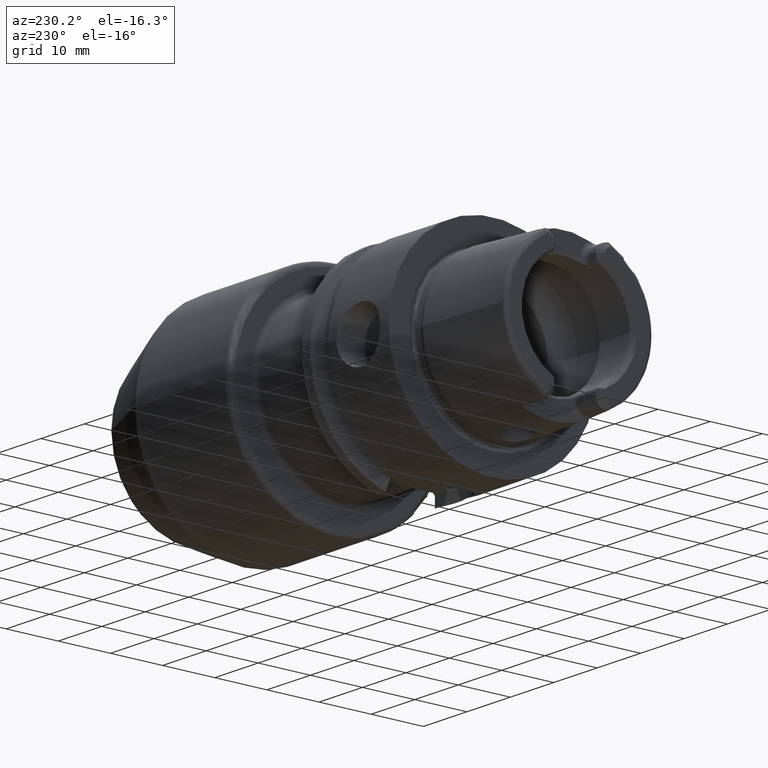
[diagram: clean part render]
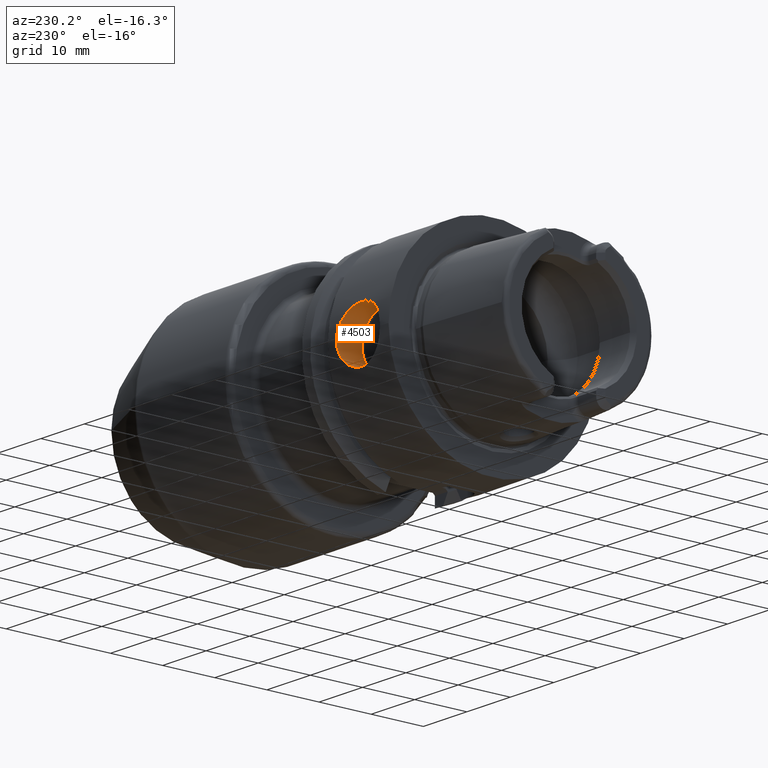
[diagram: same view with one face highlighted and labeled with its STEP entity id]
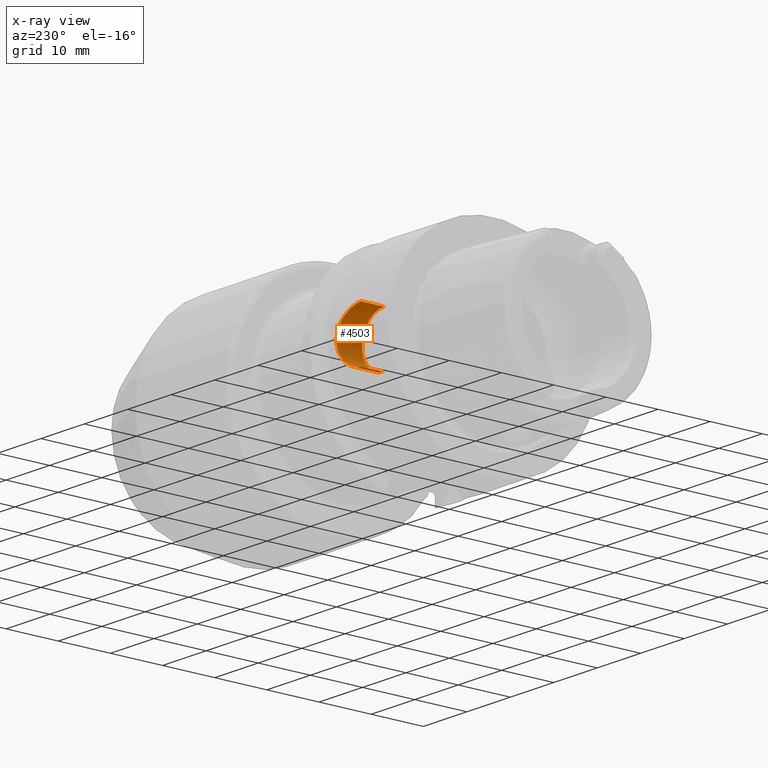
[diagram: x-ray of the same camera — body ghosted, the highlighted face saturated]
A machine part, auxiliary view. The second image highlights one B-rep face of the part: STEP entity #4503.
The next image is the same camera in x-ray: the body ghosted, the highlighted face saturated — about 0% of this face is hidden behind the body in this view.
In plain terms, the highlighted cylindrical surface (edge-blend (fillet) strip) has radius 5 mm, axis along (0, 1, 0).
Its self-contained STEP definition (entity closure, byte-faithful):
#868=CARTESIAN_POINT('',(1.2E1,2.E1,0.E0));
#869=CARTESIAN_POINT('',(1.2E1,2.E1,1.388364920824E-1));
#870=CARTESIAN_POINT('',(1.198852136236E1,1.999712548747E1,4.163534209624E-1));
#871=CARTESIAN_POINT('',(1.193575387490E1,1.998399805695E1,8.353836532792E-1));
#872=CARTESIAN_POINT('',(1.184807385497E1,1.996247590752E1,1.246772777118E0));
#873=CARTESIAN_POINT('',(1.172808406661E1,1.993361847563E1,1.643522431216E0));
#874=CARTESIAN_POINT('',(1.157779204334E1,1.989842510861E1,2.025268619863E0));
#875=CARTESIAN_POINT('',(1.138689605318E1,1.985523262154E1,2.412968215661E0));
#876=CARTESIAN_POINT('',(1.114061319227E1,1.980202032785E1,2.817609232830E0));
#877=CARTESIAN_POINT('',(1.081673847603E1,1.973634549447E1,3.247067969082E0));
#878=CARTESIAN_POINT('',(1.039181339644E1,1.965788368631E1,3.692535471258E0));
#879=CARTESIAN_POINT('',(9.863422884363E0,1.957260395466E1,4.119686676293E0));
#880=CARTESIAN_POINT('',(9.220127558389E0,1.948779295543E1,4.501864919923E0));
#881=CARTESIAN_POINT('',(8.499148679360E0,1.941800125601E1,4.791634903769E0));
#882=CARTESIAN_POINT('',(7.732800482805E0,1.937386221195E1,4.965596973568E0));
#883=CARTESIAN_POINT('',(7.243547559799E0,1.936491673104E1,5.E0));
#884=CARTESIAN_POINT('',(7.E0,1.936491673104E1,5.E0));
#977=DIRECTION('',(0.E0,-1.E0,0.E0));
#978=VECTOR('',#977,4.3E0);
#979=CARTESIAN_POINT('',(7.E0,1.936491673104E1,5.E0));
#980=LINE('',#979,#978);
#981=DIRECTION('',(0.E0,-1.E0,0.E0));
#982=VECTOR('',#981,4.3E0);
#983=CARTESIAN_POINT('',(7.E0,1.936491673104E1,-5.E0));
#984=LINE('',#983,#982);
#1039=CARTESIAN_POINT('',(7.E0,1.936491673104E1,-5.E0));
#1040=CARTESIAN_POINT('',(7.277269205720E0,1.936491673104E1,-5.E0));
#1041=CARTESIAN_POINT('',(7.817065062970E0,1.937682316948E1,-4.954174733782E0));
#1042=CARTESIAN_POINT('',(8.583101313273E0,1.942478940204E1,-4.764319170226E0));
#1043=CARTESIAN_POINT('',(9.303947795154E0,1.949746008253E1,-4.460164029726E0));
#1044=CARTESIAN_POINT('',(9.964543066702E0,1.958721708415E1,-4.051503127372E0));
#1045=CARTESIAN_POINT('',(1.056239562523E1,1.968731976873E1,-3.537987227676E0));
#1046=CARTESIAN_POINT('',(1.107349740424E1,1.978701078087E1,-2.935069864087E0));
#1047=CARTESIAN_POINT('',(1.148330640224E1,1.987613861185E1,-2.259675346177E0));
#1048=CARTESIAN_POINT('',(1.178037844883E1,1.994579806335E1,-1.533678372167E0));
#1049=CARTESIAN_POINT('',(1.196005250753E1,1.998995644002E1,
-7.733833777005E-1));
#1050=CARTESIAN_POINT('',(1.2E1,2.E1,-2.596655130622E-1));
#1051=CARTESIAN_POINT('',(1.2E1,2.E1,0.E0));
#2224=CARTESIAN_POINT('',(7.E0,1.506491673104E1,0.E0));
#2225=DIRECTION('',(0.E0,1.E0,0.E0));
#2226=DIRECTION('',(0.E0,0.E0,1.E0));
#2227=AXIS2_PLACEMENT_3D('',#2224,#2225,#2226);
#3357=CARTESIAN_POINT('',(7.E0,1.506491673104E1,5.E0));
#3359=VERTEX_POINT('',#3357);
#3361=CARTESIAN_POINT('',(7.E0,1.506491673104E1,-5.E0));
#3363=VERTEX_POINT('',#3361);
#3365=CARTESIAN_POINT('',(7.E0,1.936491673104E1,5.E0));
#3366=VERTEX_POINT('',#3365);
#3367=CARTESIAN_POINT('',(7.E0,1.936491673104E1,-5.E0));
#3368=VERTEX_POINT('',#3367);
#3369=VERTEX_POINT('',#868);
#4487=CARTESIAN_POINT('',(7.E0,1.436491673104E1,0.E0));
#4488=DIRECTION('',(0.E0,1.E0,0.E0));
#4489=DIRECTION('',(0.E0,0.E0,-1.E0));
#4490=AXIS2_PLACEMENT_3D('',#4487,#4488,#4489);
#4491=CYLINDRICAL_SURFACE('',#4490,5.E0);
#4493=ORIENTED_EDGE('',*,*,#4492,.T.);
#4495=ORIENTED_EDGE('',*,*,#4494,.T.);
#4497=ORIENTED_EDGE('',*,*,#4496,.F.);
#4499=ORIENTED_EDGE('',*,*,#4498,.T.);
#4500=ORIENTED_EDGE('',*,*,#4453,.T.);
#4501=EDGE_LOOP('',(#4493,#4495,#4497,#4499,#4500));
#4502=FACE_OUTER_BOUND('',#4501,.F.);
#4503=ADVANCED_FACE('',(#4502),#4491,.F.);
#885=B_SPLINE_CURVE_WITH_KNOTS('',3,(#868,#869,#870,#871,#872,#873,#874,#875,
#876,#877,#878,#879,#880,#881,#882,#883,#884),.UNSPECIFIED.,.F.,.F.,(4,1,1,1,1,
1,1,1,1,1,1,1,1,1,4),(0.E0,7.142857142857E-2,1.428571428571E-1,
2.142857142857E-1,2.857142857143E-1,3.571428571429E-1,4.285714285714E-1,5.E-1,
5.714285714286E-1,6.428571428571E-1,7.142857142857E-1,7.857142857143E-1,
8.571428571429E-1,9.285714285714E-1,1.E0),.UNSPECIFIED.);
#1052=B_SPLINE_CURVE_WITH_KNOTS('',3,(#1039,#1040,#1041,#1042,#1043,#1044,#1045,
#1046,#1047,#1048,#1049,#1050,#1051),.UNSPECIFIED.,.F.,.F.,(4,1,1,1,1,1,1,1,1,1,
4),(0.E0,1.E-1,2.E-1,3.E-1,4.E-1,5.E-1,6.E-1,7.E-1,8.E-1,9.E-1,1.E0),
.UNSPECIFIED.);
#2228=CIRCLE('',#2227,5.E0);
#4453=EDGE_CURVE('',#3369,#3366,#885,.T.);
#4492=EDGE_CURVE('',#3366,#3359,#980,.T.);
#4494=EDGE_CURVE('',#3359,#3363,#2228,.T.);
#4496=EDGE_CURVE('',#3368,#3363,#984,.T.);
#4498=EDGE_CURVE('',#3368,#3369,#1052,.T.);